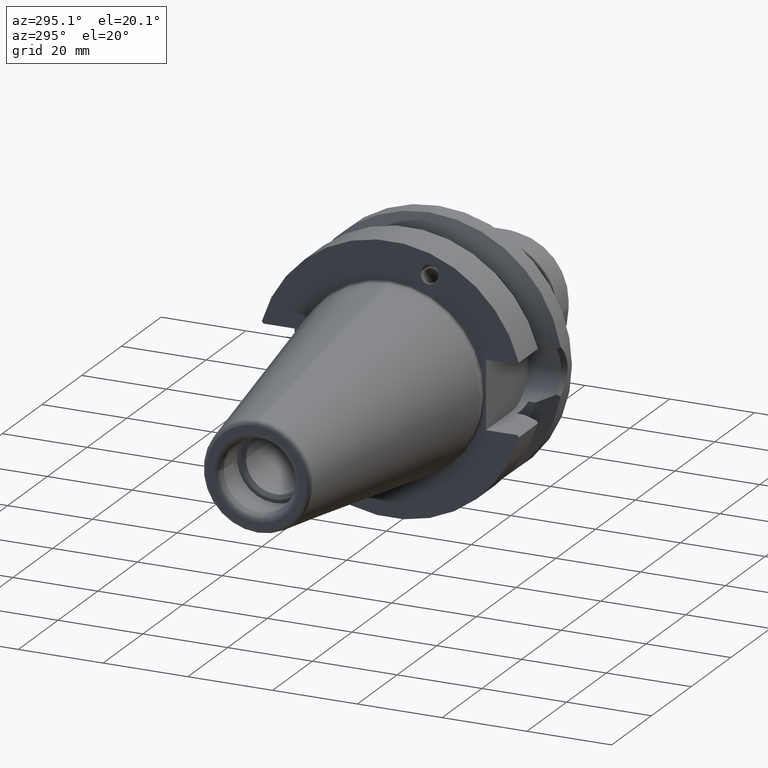
[diagram: clean part render]
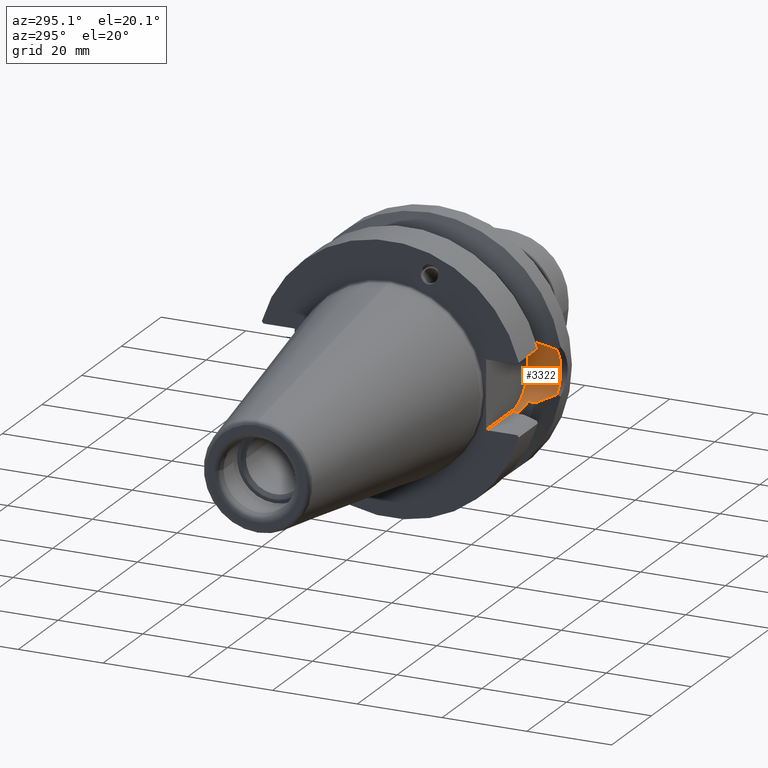
[diagram: same view with one face highlighted and labeled with its STEP entity id]
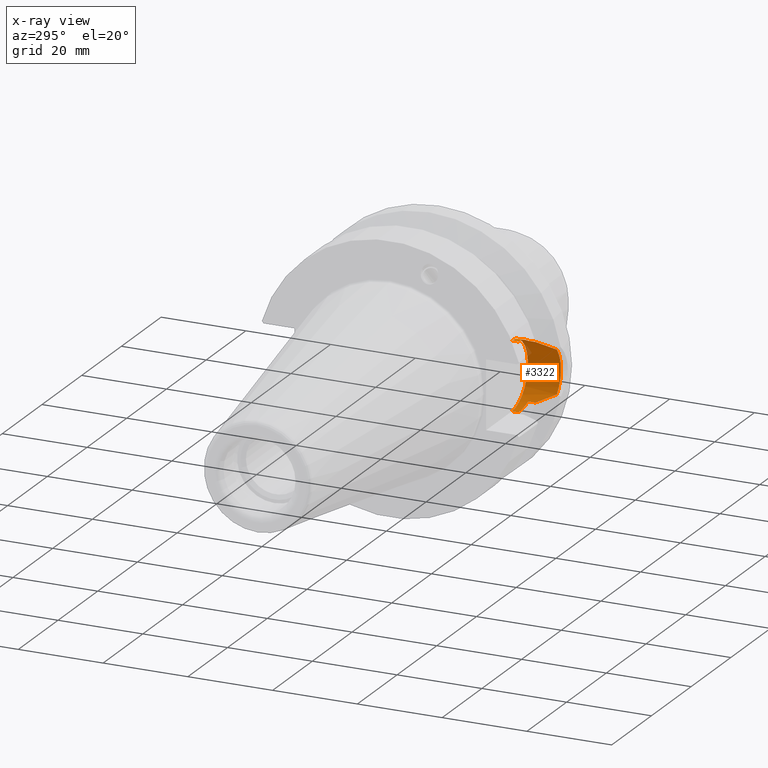
[diagram: x-ray of the same camera — body ghosted, the highlighted face saturated]
A machine part, auxiliary view. The second image highlights one B-rep face of the part: STEP entity #3322.
The next image is the same camera in x-ray: the body ghosted, the highlighted face saturated — about 2% of this face is hidden behind the body in this view.
In plain terms, the highlighted cylindrical surface (partial cylindrical patch) has radius 8.05 mm, axis along (0, -1, 0).
Its self-contained STEP definition (entity closure, byte-faithful):
#1078=CARTESIAN_POINT('',(1.495E1,-2.26E1,0.E0));
#1079=DIRECTION('',(0.E0,1.E0,0.E0));
#1080=DIRECTION('',(0.E0,0.E0,1.E0));
#1081=AXIS2_PLACEMENT_3D('',#1078,#1079,#1080);
#1091=CARTESIAN_POINT('',(2.117998131741E1,-3.029289531603E1,
-5.098022438631E0));
#1092=CARTESIAN_POINT('',(2.099357945593E1,-2.992716271349E1,
-5.325812749184E0));
#1093=CARTESIAN_POINT('',(2.059086834754E1,-2.913753076905E1,
-5.766648249127E0));
#1094=CARTESIAN_POINT('',(1.990303269829E1,-2.779127514901E1,
-6.368641630073E0));
#1095=CARTESIAN_POINT('',(1.937816045766E1,-2.676643204292E1,
-6.730473604449E0));
#1096=CARTESIAN_POINT('',(1.91E1,-2.622423715090E1,-6.897825744392E0));
#1098=DIRECTION('',(0.E0,1.E0,0.E0));
#1099=VECTOR('',#1098,1.674899074282E0);
#1100=CARTESIAN_POINT('',(1.91E1,-2.622423715090E1,-6.897825744392E0));
#1101=LINE('',#1100,#1099);
#1102=CARTESIAN_POINT('',(1.91E1,-2.454933807662E1,-6.897825744392E0));
#1103=CARTESIAN_POINT('',(1.867641699679E1,-2.447773250184E1,
-7.152669738494E0));
#1104=CARTESIAN_POINT('',(1.778882477777E1,-2.434922094846E1,
-7.580139647955E0));
#1105=CARTESIAN_POINT('',(1.638361911079E1,-2.422446852783E1,
-7.965254988483E0));
#1106=CARTESIAN_POINT('',(1.542599992151E1,-2.419602240039E1,-8.05E0));
#1107=CARTESIAN_POINT('',(1.495E1,-2.419602240039E1,-8.05E0));
#1109=DIRECTION('',(-1.335587900749E-14,-1.E0,0.E0));
#1110=VECTOR('',#1109,1.596022400386E0);
#1111=CARTESIAN_POINT('',(1.495E1,-2.26E1,-8.05E0));
#1112=LINE('',#1111,#1110);
#1118=CARTESIAN_POINT('',(1.495E1,-2.419602240039E1,8.05E0));
#1119=CARTESIAN_POINT('',(1.543086978472E1,-2.419602240039E1,8.05E0));
#1120=CARTESIAN_POINT('',(1.637987748100E1,-2.422432296295E1,7.965747821176E0));
#1121=CARTESIAN_POINT('',(1.779147067011E1,-2.434954511563E1,7.578981685646E0));
#1122=CARTESIAN_POINT('',(1.867203294335E1,-2.447699138932E1,7.155307355398E0));
#1123=CARTESIAN_POINT('',(1.91E1,-2.454933807662E1,6.897825744392E0));
#1229=DIRECTION('',(0.E0,-1.E0,0.E0));
#1230=VECTOR('',#1229,1.674899074282E0);
#1231=CARTESIAN_POINT('',(1.91E1,-2.454933807662E1,6.897825744392E0));
#1232=LINE('',#1231,#1230);
#1243=CARTESIAN_POINT('',(1.91E1,-2.622423715090E1,6.897825744392E0));
#1244=CARTESIAN_POINT('',(1.937816045766E1,-2.676643204292E1,6.730473604449E0));
#1245=CARTESIAN_POINT('',(1.990303269829E1,-2.779127514901E1,6.368641630073E0));
#1246=CARTESIAN_POINT('',(2.059086834754E1,-2.913753076905E1,5.766648249127E0));
#1247=CARTESIAN_POINT('',(2.099357945593E1,-2.992716271349E1,5.325812749184E0));
#1248=CARTESIAN_POINT('',(2.117998131741E1,-3.029289531603E1,5.098022438631E0));
#1261=CARTESIAN_POINT('',(2.117998131741E1,-3.029289531603E1,
-5.098022438631E0));
#1300=CARTESIAN_POINT('',(2.117998131741E1,-3.029289531603E1,
-5.098022438631E0));
#1301=CARTESIAN_POINT('',(2.151307421979E1,-3.031262154085E1,
-4.690969981766E0));
#1302=CARTESIAN_POINT('',(2.209912128332E1,-3.034719072617E1,
-3.811482776040E0));
#1303=CARTESIAN_POINT('',(2.270436420265E1,-3.038270699379E1,
-2.346666714906E0));
#1304=CARTESIAN_POINT('',(2.301282154012E1,-3.040075031284E1,
-7.922974435566E-1));
#1305=CARTESIAN_POINT('',(2.301282155145E1,-3.040075031350E1,
7.922976826796E-1));
#1306=CARTESIAN_POINT('',(2.270436396518E1,-3.038270697989E1,2.346667589967E0));
#1307=CARTESIAN_POINT('',(2.209912088107E1,-3.034719070250E1,3.811483467209E0));
#1308=CARTESIAN_POINT('',(2.151307400756E1,-3.031262152829E1,4.690970241117E0));
#1309=CARTESIAN_POINT('',(2.117998131741E1,-3.029289531603E1,5.098022438631E0));
#1311=CARTESIAN_POINT('',(2.117998131741E1,-3.029289531603E1,5.098022438631E0));
#1446=DIRECTION('',(-2.448577818040E-14,-1.E0,0.E0));
#1447=VECTOR('',#1446,1.596022400386E0);
#1448=CARTESIAN_POINT('',(1.495E1,-2.26E1,8.05E0));
#1449=LINE('',#1448,#1447);
#2098=VERTEX_POINT('',#1311);
#2100=VERTEX_POINT('',#1261);
#2102=VERTEX_POINT('',#1096);
#2103=CARTESIAN_POINT('',(1.91E1,-2.454933807662E1,-6.897825744392E0));
#2104=VERTEX_POINT('',#2103);
#2105=CARTESIAN_POINT('',(1.91E1,-2.454933807662E1,6.897825744392E0));
#2106=CARTESIAN_POINT('',(1.91E1,-2.622423715090E1,6.897825744392E0));
#2107=VERTEX_POINT('',#2105);
#2108=VERTEX_POINT('',#2106);
#2109=CARTESIAN_POINT('',(1.495E1,-2.26E1,-8.05E0));
#2110=CARTESIAN_POINT('',(1.495E1,-2.419602240039E1,-8.05E0));
#2111=VERTEX_POINT('',#2109);
#2112=VERTEX_POINT('',#2110);
#2113=CARTESIAN_POINT('',(1.495E1,-2.26E1,8.05E0));
#2114=VERTEX_POINT('',#2113);
#2115=CARTESIAN_POINT('',(1.495E1,-2.419602240039E1,8.05E0));
#2116=VERTEX_POINT('',#2115);
#3296=CARTESIAN_POINT('',(1.495E1,1.136268E2,0.E0));
#3297=DIRECTION('',(0.E0,-1.E0,0.E0));
#3298=DIRECTION('',(0.E0,0.E0,-1.E0));
#3299=AXIS2_PLACEMENT_3D('',#3296,#3297,#3298);
#3300=CYLINDRICAL_SURFACE('',#3299,8.05E0);
#3302=ORIENTED_EDGE('',*,*,#3301,.F.);
#3303=ORIENTED_EDGE('',*,*,#3286,.F.);
#3305=ORIENTED_EDGE('',*,*,#3304,.T.);
#3307=ORIENTED_EDGE('',*,*,#3306,.T.);
#3309=ORIENTED_EDGE('',*,*,#3308,.T.);
#3311=ORIENTED_EDGE('',*,*,#3310,.T.);
#3313=ORIENTED_EDGE('',*,*,#3312,.F.);
#3315=ORIENTED_EDGE('',*,*,#3314,.T.);
#3317=ORIENTED_EDGE('',*,*,#3316,.T.);
#3319=ORIENTED_EDGE('',*,*,#3318,.T.);
#3320=EDGE_LOOP('',(#3302,#3303,#3305,#3307,#3309,#3311,#3313,#3315,#3317,
#3319));
#3321=FACE_OUTER_BOUND('',#3320,.F.);
#3322=ADVANCED_FACE('',(#3321),#3300,.F.);
#1082=CIRCLE('',#1081,8.05E0);
#1097=B_SPLINE_CURVE_WITH_KNOTS('',3,(#1091,#1092,#1093,#1094,#1095,#1096),
.UNSPECIFIED.,.F.,.F.,(4,1,1,4),(0.E0,3.333333333333E-1,6.666666666667E-1,1.E0),
.UNSPECIFIED.);
#1108=B_SPLINE_CURVE_WITH_KNOTS('',3,(#1102,#1103,#1104,#1105,#1106,#1107),
.UNSPECIFIED.,.F.,.F.,(4,1,1,4),(0.E0,3.333333333333E-1,6.666666666667E-1,1.E0),
.UNSPECIFIED.);
#1124=B_SPLINE_CURVE_WITH_KNOTS('',3,(#1118,#1119,#1120,#1121,#1122,#1123),
.UNSPECIFIED.,.F.,.F.,(4,1,1,4),(0.E0,3.333333333333E-1,6.666666666667E-1,1.E0),
.UNSPECIFIED.);
#1249=B_SPLINE_CURVE_WITH_KNOTS('',3,(#1243,#1244,#1245,#1246,#1247,#1248),
.UNSPECIFIED.,.F.,.F.,(4,1,1,4),(0.E0,3.333333333333E-1,6.666666666667E-1,1.E0),
.UNSPECIFIED.);
#1310=B_SPLINE_CURVE_WITH_KNOTS('',3,(#1300,#1301,#1302,#1303,#1304,#1305,#1306,
#1307,#1308,#1309),.UNSPECIFIED.,.F.,.F.,(4,1,1,1,1,1,1,4),(0.E0,
1.428571428571E-1,2.857142857143E-1,4.285714285714E-1,5.714285714286E-1,
7.142857142857E-1,8.571428571429E-1,1.E0),.UNSPECIFIED.);
#3286=EDGE_CURVE('',#2114,#2111,#1082,.T.);
#3301=EDGE_CURVE('',#2111,#2112,#1112,.T.);
#3304=EDGE_CURVE('',#2114,#2116,#1449,.T.);
#3306=EDGE_CURVE('',#2116,#2107,#1124,.T.);
#3308=EDGE_CURVE('',#2107,#2108,#1232,.T.);
#3310=EDGE_CURVE('',#2108,#2098,#1249,.T.);
#3312=EDGE_CURVE('',#2100,#2098,#1310,.T.);
#3314=EDGE_CURVE('',#2100,#2102,#1097,.T.);
#3316=EDGE_CURVE('',#2102,#2104,#1101,.T.);
#3318=EDGE_CURVE('',#2104,#2112,#1108,.T.);